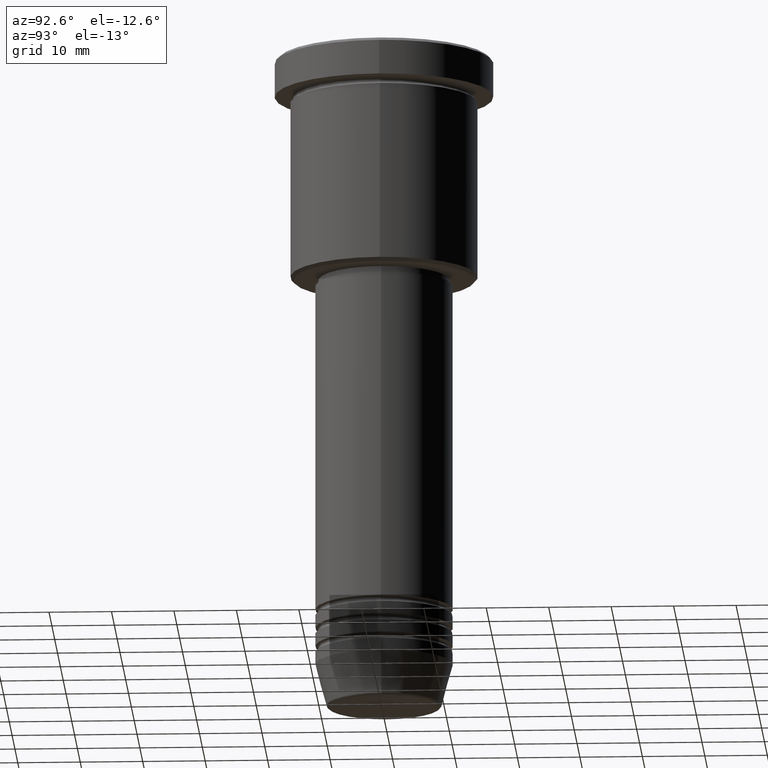
[diagram: clean part render]
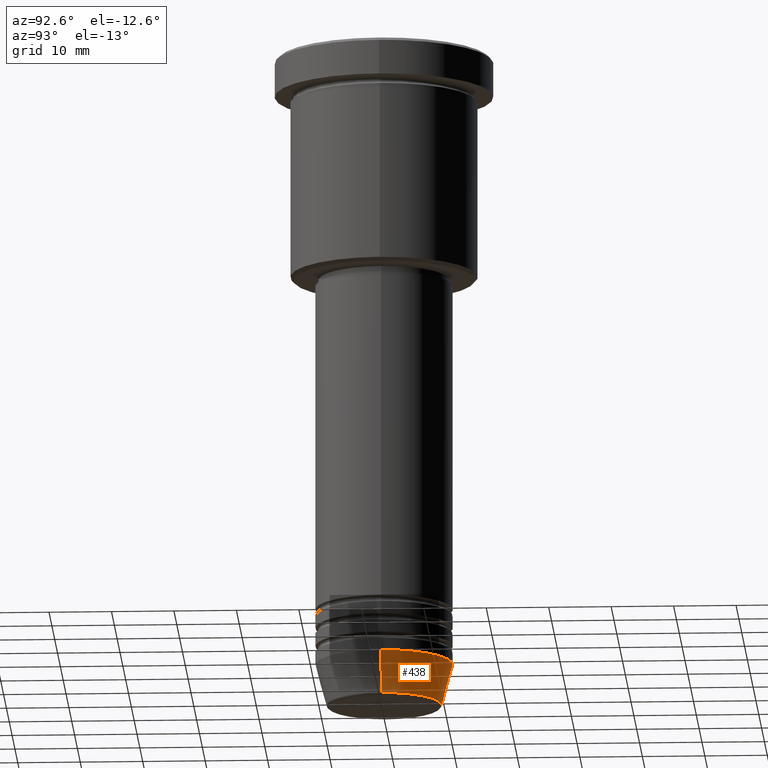
[diagram: same view with one face highlighted and labeled with its STEP entity id]
A machine part, auxiliary view. The second image highlights one B-rep face of the part: STEP entity #438.
In plain terms, the highlighted conical surface has half-angle 15 deg.
Its self-contained STEP definition (entity closure, byte-faithful):
#2 = ORIENTED_EDGE ( 'NONE', *, *, #992, .F. ) ;
#24 = ORIENTED_EDGE ( 'NONE', *, *, #196, .T. ) ;
#170 = AXIS2_PLACEMENT_3D ( 'NONE', #177, #805, #1075 ) ;
#177 = CARTESIAN_POINT ( 'NONE',  ( 0.000000000000000000, 0.000000000000000000, -99.00000000000000000 ) ) ;
#186 = VECTOR ( 'NONE', #1149, 1000.000000000000000 ) ;
#196 = EDGE_CURVE ( 'NONE', #722, #644, #319, .T. ) ;
#215 = CARTESIAN_POINT ( 'NONE',  ( 0.000000000000000000, 0.000000000000000000, -105.6294095225512422 ) ) ;
#232 = LINE ( 'NONE', #1130, #733 ) ;
#249 = CARTESIAN_POINT ( 'NONE',  ( 11.00000000000000000, 0.000000000000000000, -99.00000000000000000 ) ) ;
#316 = EDGE_CURVE ( 'NONE', #644, #1145, #332, .T. ) ;
#319 = CIRCLE ( 'NONE', #751, 9.223655072137191269 ) ;
#327 = DIRECTION ( 'NONE',  ( 0.2588190451025213501, 0.000000000000000000, 0.9659258262890680902 ) ) ;
#332 = LINE ( 'NONE', #790, #186 ) ;
#342 = EDGE_CURVE ( 'NONE', #722, #791, #232, .T. ) ;
#375 = CARTESIAN_POINT ( 'NONE',  ( 0.000000000000000000, 0.000000000000000000, -99.00000000000000000 ) ) ;
#407 = ORIENTED_EDGE ( 'NONE', *, *, #342, .F. ) ;
#417 = CARTESIAN_POINT ( 'NONE',  ( -11.00000000000000000, 1.347111479062088405E-15, -99.00000000000000000 ) ) ;
#438 = ADVANCED_FACE ( 'NONE', ( #991 ), #736, .T. ) ;
#644 = VERTEX_POINT ( 'NONE', #658 ) ;
#658 = CARTESIAN_POINT ( 'NONE',  ( -9.223655072137191269, 1.238341722557647202E-15, -105.6294095225512422 ) ) ;
#676 = CIRCLE ( 'NONE', #753, 11.00000000000000000 ) ;
#722 = VERTEX_POINT ( 'NONE', #857 ) ;
#733 = VECTOR ( 'NONE', #327, 1000.000000000000000 ) ;
#736 = CONICAL_SURFACE ( 'NONE', #170, 11.00000000000000000, 0.2617993877991500740 ) ;
#751 = AXIS2_PLACEMENT_3D ( 'NONE', #215, #762, #1116 ) ;
#753 = AXIS2_PLACEMENT_3D ( 'NONE', #375, #1008, #1013 ) ;
#762 = DIRECTION ( 'NONE',  ( -0.000000000000000000, -0.000000000000000000, 1.000000000000000000 ) ) ;
#767 = ORIENTED_EDGE ( 'NONE', *, *, #316, .T. ) ;
#784 = EDGE_LOOP ( 'NONE', ( #24, #767, #2, #407 ) ) ;
#790 = CARTESIAN_POINT ( 'NONE',  ( -11.00000000000000000, 1.347111479062088405E-15, -99.00000000000000000 ) ) ;
#791 = VERTEX_POINT ( 'NONE', #249 ) ;
#805 = DIRECTION ( 'NONE',  ( -0.000000000000000000, -0.000000000000000000, 1.000000000000000000 ) ) ;
#857 = CARTESIAN_POINT ( 'NONE',  ( 9.223655072137191269, 0.000000000000000000, -105.6294095225512422 ) ) ;
#991 = FACE_OUTER_BOUND ( 'NONE', #784, .T. ) ;
#992 = EDGE_CURVE ( 'NONE', #791, #1145, #676, .T. ) ;
#1008 = DIRECTION ( 'NONE',  ( -0.000000000000000000, -0.000000000000000000, 1.000000000000000000 ) ) ;
#1013 = DIRECTION ( 'NONE',  ( 1.000000000000000000, 0.000000000000000000, 0.000000000000000000 ) ) ;
#1075 = DIRECTION ( 'NONE',  ( 1.000000000000000000, 0.000000000000000000, 0.000000000000000000 ) ) ;
#1116 = DIRECTION ( 'NONE',  ( 1.000000000000000000, 0.000000000000000000, 0.000000000000000000 ) ) ;
#1130 = CARTESIAN_POINT ( 'NONE',  ( 11.00000000000000000, 0.000000000000000000, -99.00000000000000000 ) ) ;
#1145 = VERTEX_POINT ( 'NONE', #417 ) ;
#1149 = DIRECTION ( 'NONE',  ( -0.2588190451025213501, 3.169619151431772337E-17, 0.9659258262890680902 ) ) ;